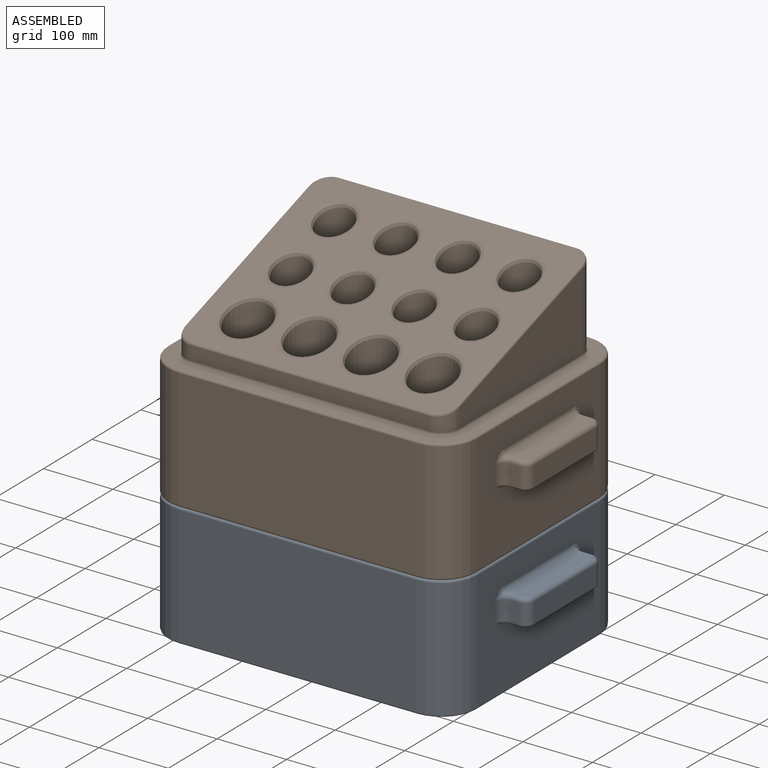
[diagram: assembled view]
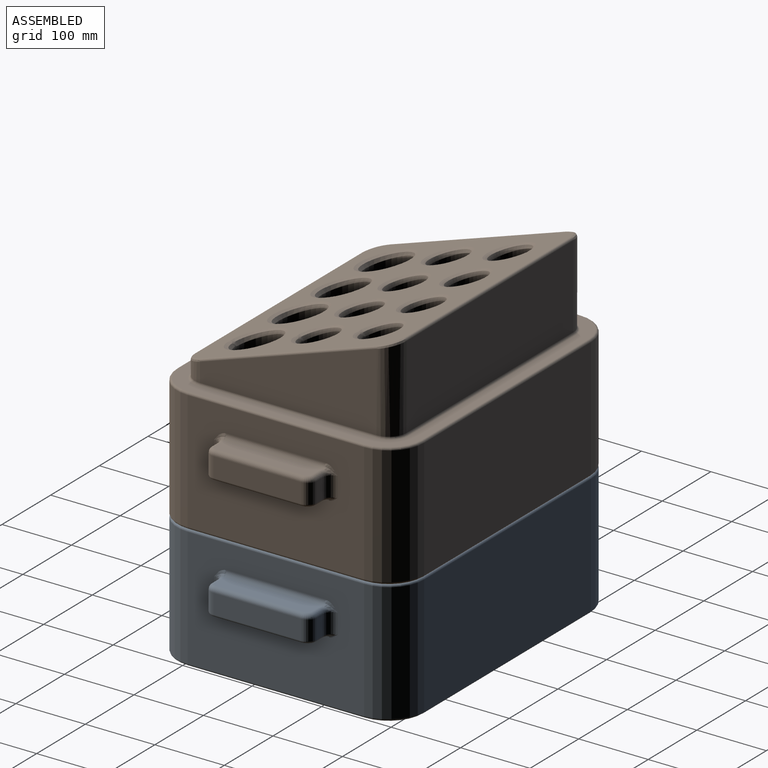
[diagram: assembled view, second angle]
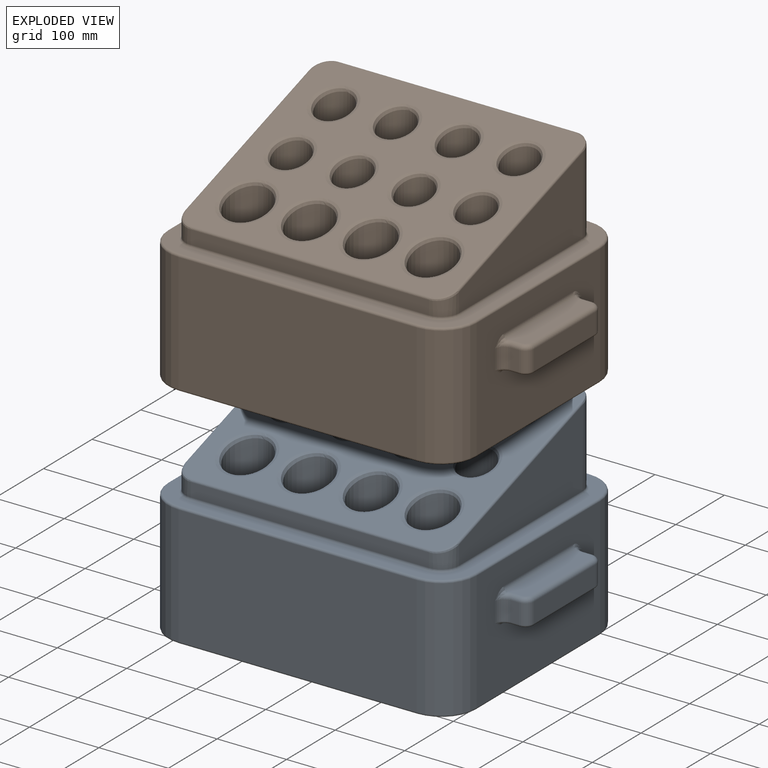
[diagram: exploded view]
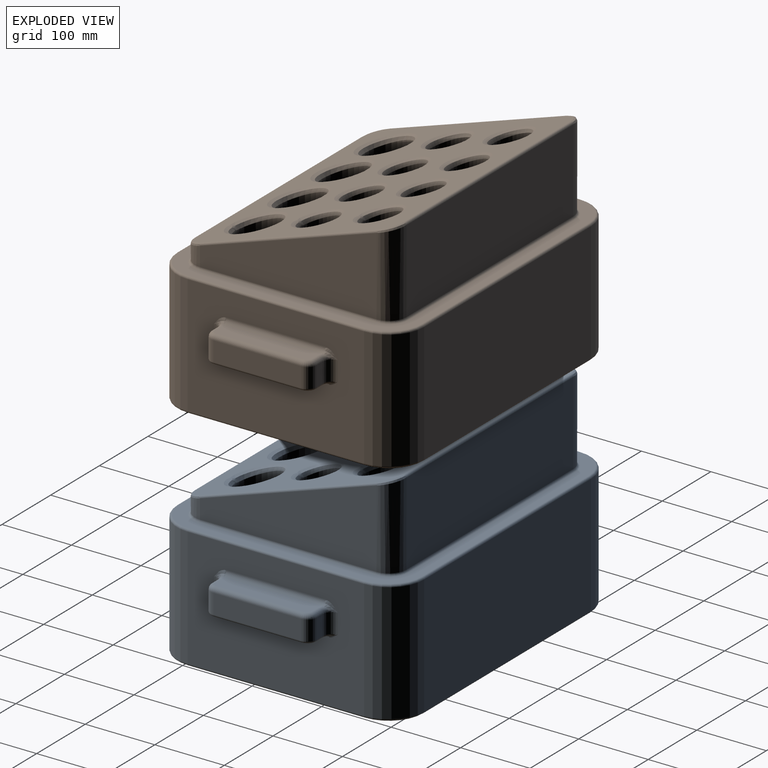
[diagram: exploded view, second angle]
ASSEMBLY  parts=2 mates=3
PART A: 309 faces, bbox 526.6x367.7x307.3 mm
  f0: plane 152.4x31.75mm, normal (0,0,-1), area 1270.4mm2, adj f269,f270,f272,f273,f274,f276,f277,f278
  f1: plane 152.4x31.75mm, normal (0,0,-1), area 1270.4mm2, adj f289,f291,f292,f293,f295,f296,f297,f298
  f2: plane 257.44x174.89mm, normal (1,0,0), area 37860.9mm2, adj f73,f74,f84,f85,f215,f216,f230,f232
  f3: plane 254x138.97mm, normal (1,0,0), area 26612.8mm2, adj f69,f71,f93,f117
  f4: plane 254x138.97mm, normal (-1,0,0), area 26612.9mm2, adj f70,f72,f100,f117
  f5: plane 257.44x174.89mm, normal (-1,0,0), area 37860.9mm2, adj f75,f76,f77,f92,f213,f214,f221,f223
  f6: plane 438.15x349.25mm, normal (0,0,-1), area 22910.2mm2, adj f77,f78,f79,f80,f81,f82,f83,f84
  f7: plane 342.9x171.45mm, normal (0,-1,0), area 58790.2mm2, adj f74,f76,f80,f88
  f8: plane 342.9x19.94mm, normal (0,-1,0), area 6836.3mm2, adj f56,f58,f105,f112
  f9: plane 342.9x119.42mm, normal (0,1,0), area 40949.1mm2, adj f55,f57,f104,f113
  f10: plane 254x112.01mm, normal (-1,0,0), area 17698.3mm2, adj f57,f58,f108,f116
  f11: plane 387.35x298.45mm, normal (0,-0.32,0.95), area 75477mm2, adj f41,f42,f43,f44,f45,f46,f47,f48
  f12: cylinder r=25.4mm len=128.78mm, axis (0,0,1), area 18862.3mm2, adj f33,f49
  f13: cylinder r=25.4mm len=128.78mm, axis (0,0,1), area 18862.3mm2, adj f34,f48
  f14: cylinder r=25.4mm len=128.78mm, axis (0,0,1), area 18862.3mm2, adj f32,f47
  f15: cylinder r=25.4mm len=124.55mm, axis (0,0,1), area 18186.7mm2, adj f36,f46
  f16: cylinder r=25.4mm len=124.55mm, axis (0,0,1), area 18186.7mm2, adj f37,f45
  f17: cylinder r=25.4mm len=124.55mm, axis (0,0,1), area 18186.7mm2, adj f35,f44
  f18: cylinder r=31.75mm len=122.43mm, axis (0,0,1), area 21888.8mm2, adj f39,f43
  f19: cylinder r=31.75mm len=122.43mm, axis (0,0,1), area 21888.8mm2, adj f38,f42
  f20: cylinder r=31.75mm len=122.43mm, axis (0,0,1), area 21888.8mm2, adj f40,f41
  f21: plane 50.8x50.8mm, normal (0,0,1), area 2026.8mm2, adj f40
  f22: plane 50.8x50.8mm, normal (0,0,1), area 2026.8mm2, adj f38
  f23: plane 50.8x50.8mm, normal (0,0,1), area 2026.8mm2, adj f39
  f24: plane 38.1x38.1mm, normal (0,0,1), area 1140.1mm2, adj f35
  f25: plane 38.1x38.1mm, normal (0,0,1), area 1140.1mm2, adj f37
  f26: plane 38.1x38.1mm, normal (0,0,1), area 1140.1mm2, adj f36
  f27: plane 38.1x38.1mm, normal (0,0,1), area 1140.1mm2, adj f32
  f28: plane 38.1x38.1mm, normal (0,0,1), area 1140.1mm2, adj f34
  f29: plane 38.1x38.1mm, normal (0,0,1), area 1140.1mm2, adj f33
  f30: plane 438.15x349.25mm, normal (0,0,1), area 27302.3mm2, adj f85,f86,f87,f88,f89,f90,f91,f92
  f31: plane 342.9x171.45mm, normal (0,1,0), area 58790.2mm2, adj f73,f75,f81,f89
  f32: torus R=19.05mm, axis (0,0,-1), area 1447.3mm2, adj f14,f27
  f33: torus R=19.05mm, axis (0,0,-1), area 1447.3mm2, adj f12,f29
  f34: torus R=19.05mm, axis (0,0,-1), area 1447.3mm2, adj f13,f28
  f35: torus R=19.05mm, axis (0,0,-1), area 1447.3mm2, adj f17,f24
  f36: torus R=19.05mm, axis (0,0,-1), area 1447.3mm2, adj f15,f26
  f37: torus R=19.05mm, axis (0,0,-1), area 1447.3mm2, adj f16,f25
  f38: torus R=25.4mm, axis (0,0,-1), area 1845.2mm2, adj f19,f22
  f39: torus R=25.4mm, axis (0,0,-1), area 1845.2mm2, adj f18,f23
  f40: torus R=25.4mm, axis (0,0,-1), area 1845.2mm2, adj f20,f21
  f41: bspline ~76.2x76.2mm, area 2198.6mm2, adj f11,f20
  f42: bspline ~76.2x76.2mm, area 2198.6mm2, adj f11,f19
  f43: bspline ~76.2x76.2mm, area 2198.6mm2, adj f11,f18
  f44: bspline ~63.47x63.43mm, area 1790mm2, adj f11,f17
  f45: bspline ~63.47x63.43mm, area 1790mm2, adj f11,f16
  f46: bspline ~63.47x63.43mm, area 1790mm2, adj f11,f15
  f47: bspline ~63.47x63.43mm, area 1790mm2, adj f11,f14
  f48: bspline ~63.47x63.43mm, area 1790mm2, adj f11,f13
  f49: bspline ~63.47x63.43mm, area 1790mm2, adj f11,f12
  f50: plane 254x112.01mm, normal (1,0,0), area 17698.3mm2, adj f55,f56,f101,f109
  f51: cylinder r=31.75mm len=122.6mm, axis (0,0,-1), area 21888.8mm2, adj f53,f54
  f52: plane 50.8x50.8mm, normal (0,0,1), area 2026.8mm2, adj f54
  f53: bspline ~76.16x76.12mm, area 2200.5mm2, adj f11,f51
  f54: torus R=25.4mm, axis (0,0,1), area 1845.2mm2, adj f51,f52
  f55: cylinder r=25.4mm len=119.42mm, axis (0,0,1), area 4616.9mm2, adj f9,f50,f102,f111
  f56: cylinder r=25.4mm len=27.35mm, axis (0,0,-1), area 943.2mm2, adj f8,f50,f103,f110
  f57: cylinder r=25.4mm len=119.42mm, axis (0,0,-1), area 4616.9mm2, adj f9,f10,f106,f115
  f58: cylinder r=25.4mm len=27.35mm, axis (0,0,1), area 943.2mm2, adj f8,f10,f107,f114
  f59: cylinder r=25.4mm len=124.68mm, axis (0,0,-1), area 18186.6mm2, adj f61,f62
  f60: plane 38.1x38.1mm, normal (0,0,1), area 1140.1mm2, adj f62
  f61: bspline ~63.47x63.43mm, area 1791.5mm2, adj f11,f59
  f62: torus R=19.05mm, axis (0,0,1), area 1447.3mm2, adj f59,f60
  f63: cylinder r=25.4mm len=128.92mm, axis (0,0,-1), area 18862.2mm2, adj f65,f66
  f64: plane 38.1x38.1mm, normal (0,0,1), area 1140.1mm2, adj f66
  f65: bspline ~63.47x63.43mm, area 1791.5mm2, adj f11,f63
  f66: torus R=19.05mm, axis (0,0,1), area 1447.3mm2, adj f63,f64
  f67: plane 342.9x62.89mm, normal (0,1,0), area 21564.8mm2, adj f71,f72,f97,f117
  f68: plane 342.9x146.66mm, normal (0,-1,0), area 50289.9mm2, adj f69,f70,f96,f117
  f69: cylinder r=28.57mm len=146.66mm, axis (0,0,1), area 6410.3mm2, adj f3,f68,f94,f117
  f70: cylinder r=28.57mm len=146.66mm, axis (0,0,-1), area 6410.3mm2, adj f4,f68,f98,f117
  f71: cylinder r=28.57mm len=70.58mm, axis (0,0,-1), area 2995.5mm2, adj f3,f67,f95,f117
  f72: cylinder r=28.57mm len=70.58mm, axis (0,0,1), area 2995.5mm2, adj f4,f67,f99,f117
  f73: cylinder r=50.8mm len=171.45mm, axis (0,0,1), area 13681.1mm2, adj f2,f31,f83,f87
  f74: cylinder r=50.8mm len=171.45mm, axis (0,0,1), area 13681.1mm2, adj f2,f7,f82,f86
  f75: cylinder r=50.8mm len=171.45mm, axis (0,0,1), area 13681.1mm2, adj f5,f31,f79,f91
  f76: cylinder r=50.8mm len=171.45mm, axis (0,0,1), area 13681.1mm2, adj f5,f7,f78,f90
  f77: cylinder r=3.17mm len=254mm, axis (0,1,0), area 1266.8mm2, adj f5,f6,f78,f79
  f78: torus R=47.62mm, axis (0,0,1), area 388.9mm2, adj f6,f76,f77,f80
  f79: torus R=47.62mm, axis (0,0,1), area 388.9mm2, adj f6,f75,f77,f81
  f80: cylinder r=3.17mm len=342.9mm, axis (-1,0,0), area 1710.1mm2, adj f6,f7,f78,f82
  f81: cylinder r=3.17mm len=342.9mm, axis (-1,0,0), area 1710.1mm2, adj f6,f31,f79,f83
  f82: torus R=47.62mm, axis (0,0,1), area 388.9mm2, adj f6,f74,f80,f84
  f83: torus R=47.62mm, axis (0,0,1), area 388.9mm2, adj f6,f73,f81,f84
  f84: cylinder r=3.17mm len=254mm, axis (0,-1,0), area 1266.8mm2, adj f2,f6,f82,f83
  f85: cylinder r=3.17mm len=254mm, axis (0,1,0), area 1266.8mm2, adj f2,f30,f86,f87
  f86: torus R=47.62mm, axis (0,0,1), area 388.9mm2, adj f30,f74,f85,f88
  f87: torus R=47.62mm, axis (0,0,1), area 388.9mm2, adj f30,f73,f85,f89
  f88: cylinder r=3.17mm len=342.9mm, axis (1,0,0), area 1710.1mm2, adj f7,f30,f86,f90
  f89: cylinder r=3.17mm len=342.9mm, axis (1,0,0), area 1710.1mm2, adj f30,f31,f87,f91
  f90: torus R=47.62mm, axis (0,0,1), area 388.9mm2, adj f30,f76,f88,f92
  f91: torus R=47.62mm, axis (0,0,1), area 388.9mm2, adj f30,f75,f89,f92
  f92: cylinder r=3.17mm len=254mm, axis (0,1,0), area 1266.8mm2, adj f5,f30,f90,f91
  f93: cylinder r=3.17mm len=254mm, axis (0,-1,0), area 1266.8mm2, adj f3,f6,f94,f95
  f94: torus R=31.75mm, axis (0,0,1), area 232.9mm2, adj f6,f69,f93,f96
  f95: torus R=31.75mm, axis (0,0,1), area 232.9mm2, adj f6,f71,f93,f97
  f96: cylinder r=3.17mm len=342.9mm, axis (1,0,0), area 1710.1mm2, adj f6,f68,f94,f98
  f97: cylinder r=3.17mm len=342.9mm, axis (1,0,0), area 1710.1mm2, adj f6,f67,f95,f99
  f98: torus R=31.75mm, axis (0,0,1), area 232.9mm2, adj f6,f70,f96,f100
  f99: torus R=31.75mm, axis (0,0,1), area 232.9mm2, adj f6,f72,f97,f100
  f100: cylinder r=3.17mm len=254mm, axis (0,-1,0), area 1266.8mm2, adj f4,f6,f98,f99
  f101: cylinder r=3.17mm len=255mm, axis (0,0.95,0.32), area 1335.3mm2, adj f11,f50,f102,f103
  f102: bspline ~26.4x25.4mm, area 220.9mm2, adj f11,f55,f101,f104
  f103: bspline ~29.81x25.44mm, area 168.5mm2, adj f11,f56,f101,f105
  f104: cylinder r=3.17mm len=342.9mm, axis (1,0,0), area 2060.4mm2, adj f9,f11,f102,f106
  f105: cylinder r=3.17mm len=342.9mm, axis (1,0,0), area 1359.8mm2, adj f8,f11,f103,f107
  f106: bspline ~26.4x25.4mm, area 220.9mm2, adj f11,f57,f104,f108
  f107: bspline ~29.85x29.81mm, area 168.5mm2, adj f11,f58,f105,f108
  f108: cylinder r=3.17mm len=255mm, axis (0,0.95,0.32), area 1335.3mm2, adj f10,f11,f106,f107
  f109: cylinder r=3.17mm len=254mm, axis (0,1,0), area 1266.8mm2, adj f30,f50,f110,f111
  f110: torus R=28.57mm, axis (0,0,1), area 208mm2, adj f30,f56,f109,f112
  f111: torus R=28.57mm, axis (0,0,1), area 208mm2, adj f30,f55,f109,f113
  f112: cylinder r=3.17mm len=342.9mm, axis (1,0,0), area 1710.1mm2, adj f8,f30,f110,f114
  f113: cylinder r=3.17mm len=342.9mm, axis (-1,0,0), area 1710.1mm2, adj f9,f30,f111,f115
  f114: torus R=28.57mm, axis (0,0,1), area 208mm2, adj f30,f58,f112,f116
  f115: torus R=28.57mm, axis (0,0,1), area 208mm2, adj f30,f57,f113,f116
  f116: cylinder r=3.17mm len=254mm, axis (0,-1,0), area 1266.8mm2, adj f10,f30,f114,f115
  f117: plane 413.35x324.45mm, normal (0,-0.26,0.97), area 6847.2mm2, adj f3,f4,f67,f68,f69,f70,f71,f72
  f118: plane 254x137.38mm, normal (-1,0,0), area 26209.6mm2, adj f117,f121,f185,f187
  f119: plane 254x137.38mm, normal (1,0,0), area 26209.6mm2, adj f117,f121,f186,f188
  f120: plane 254x168.28mm, normal (1,0,0), area 42741.8mm2, adj f121,f145,f191,f192
  f121: plane 434.98x346.08mm, normal (0,0,1), area 18328.2mm2, adj f118,f119,f120,f122,f146,f165,f183,f184
  f122: plane 342.9x168.28mm, normal (0,1,0), area 57701.5mm2, adj f121,f145,f190,f192
  f123: plane 342.9x18.79mm, normal (0,1,0), area 6443.9mm2, adj f126,f172,f174,f196
  f124: plane 342.9x117.22mm, normal (0,-1,0), area 40193.8mm2, adj f126,f171,f173,f197
  f125: plane 254x110.34mm, normal (1,0,0), area 17273.2mm2, adj f126,f173,f174,f200
  f126: plane 387.07x298.17mm, normal (0,0.32,-0.95), area 73254mm2, adj f123,f124,f125,f156,f157,f158,f159,f160
  f127: cylinder r=30.16mm len=128.78mm, axis (0,0,1), area 22330.4mm2, adj f148,f164
  f128: cylinder r=30.16mm len=128.78mm, axis (0,0,1), area 22330.4mm2, adj f149,f163
  f129: cylinder r=30.16mm len=128.78mm, axis (0,0,1), area 22330.4mm2, adj f147,f162
  f130: cylinder r=30.16mm len=124.54mm, axis (0,0,1), area 21528.2mm2, adj f151,f161
  f131: cylinder r=30.16mm len=124.54mm, axis (0,0,1), area 21528.2mm2, adj f152,f160
  f132: cylinder r=30.16mm len=124.54mm, axis (0,0,1), area 21528.2mm2, adj f150,f159
  f133: cylinder r=36.51mm len=122.43mm, axis (0,0,1), area 25072.6mm2, adj f154,f158
  f134: cylinder r=36.51mm len=122.43mm, axis (0,0,1), area 25072.6mm2, adj f153,f157
  f135: cylinder r=36.51mm len=122.43mm, axis (0,0,1), area 25072.6mm2, adj f155,f156
  f136: plane 50.8x50.8mm, normal (0,0,-1), area 2026.8mm2, adj f155
  f137: plane 50.8x50.8mm, normal (0,0,-1), area 2026.8mm2, adj f153
  f138: plane 50.8x50.8mm, normal (0,0,-1), area 2026.8mm2, adj f154
  f139: plane 38.1x38.1mm, normal (0,0,-1), area 1140.1mm2, adj f150
  f140: plane 38.1x38.1mm, normal (0,0,-1), area 1140.1mm2, adj f152
  f141: plane 38.1x38.1mm, normal (0,0,-1), area 1140.1mm2, adj f151
  f142: plane 38.1x38.1mm, normal (0,0,-1), area 1140.1mm2, adj f147
  f143: plane 38.1x38.1mm, normal (0,0,-1), area 1140.1mm2, adj f149
  f144: plane 38.1x38.1mm, normal (0,0,-1), area 1140.1mm2, adj f148
  f145: plane 434.98x346.08mm, normal (0,0,-1), area 24940mm2, adj f120,f122,f146,f165,f189,f190,f191,f192
  f146: plane 342.9x168.28mm, normal (0,-1,0), area 57701.5mm2, adj f121,f145,f189,f191
  f147: torus R=19.05mm, axis (0,0,-1), area 2865.2mm2, adj f129,f142
  f148: torus R=19.05mm, axis (0,0,-1), area 2865.2mm2, adj f127,f144
  f149: torus R=19.05mm, axis (0,0,-1), area 2865.2mm2, adj f128,f143
  f150: torus R=19.05mm, axis (0,0,-1), area 2865.2mm2, adj f132,f139
  f151: torus R=19.05mm, axis (0,0,-1), area 2865.2mm2, adj f130,f141
  f152: torus R=19.05mm, axis (0,0,-1), area 2865.2mm2, adj f131,f140
  f153: torus R=25.4mm, axis (0,0,-1), area 3561.7mm2, adj f134,f137
  f154: torus R=25.4mm, axis (0,0,-1), area 3561.7mm2, adj f133,f138
  f155: torus R=25.4mm, axis (0,0,-1), area 3561.7mm2, adj f135,f136
  f156: bspline ~76.2x76.2mm, area 597.1mm2, adj f126,f135
  f157: bspline ~76.2x76.2mm, area 597.1mm2, adj f126,f134
  f158: bspline ~76.2x76.2mm, area 597.1mm2, adj f126,f133
  f159: bspline ~63.47x63.43mm, area 495mm2, adj f126,f132
  f160: bspline ~63.47x63.43mm, area 495mm2, adj f126,f131
  f161: bspline ~63.47x63.43mm, area 495mm2, adj f126,f130
  f162: bspline ~63.47x63.43mm, area 495mm2, adj f126,f129
  f163: bspline ~63.47x63.43mm, area 495mm2, adj f126,f128
  f164: bspline ~63.47x63.43mm, area 495mm2, adj f126,f127
  f165: plane 254x168.28mm, normal (-1,0,0), area 42741.9mm2, adj f121,f145,f189,f190
  f166: plane 254x110.34mm, normal (-1,0,0), area 17273.2mm2, adj f126,f171,f172,f193
  f167: cylinder r=36.51mm len=122.49mm, axis (0,0,-1), area 25271.6mm2, adj f169,f170
  f168: plane 50.8x50.8mm, normal (0,0,-1), area 2026.8mm2, adj f170
  f169: bspline ~76.2x76.2mm, area 597.6mm2, adj f126,f167
  f170: torus R=25.4mm, axis (0,0,1), area 3561.7mm2, adj f167,f168
  f171: cylinder r=20.64mm len=117.22mm, axis (0,0,1), area 3688.4mm2, adj f124,f126,f166,f195
  f172: cylinder r=20.64mm len=25.67mm, axis (0,0,-1), area 720.7mm2, adj f123,f126,f166,f194
  f173: cylinder r=20.64mm len=117.22mm, axis (0,0,-1), area 3688.4mm2, adj f124,f125,f126,f199
  f174: cylinder r=20.64mm len=25.67mm, axis (0,0,1), area 720.7mm2, adj f123,f125,f126,f198
  f175: cylinder r=30.16mm len=124.59mm, axis (0,0,-1), area 21665.2mm2, adj f177,f178
  f176: plane 38.1x38.1mm, normal (0,0,-1), area 1140.1mm2, adj f178
  f177: bspline ~63.47x63.43mm, area 495.4mm2, adj f126,f175
  f178: torus R=19.05mm, axis (0,0,1), area 2865.2mm2, adj f175,f176
  f179: cylinder r=30.16mm len=128.83mm, axis (0,0,-1), area 22467.4mm2, adj f181,f182
  f180: plane 38.1x38.1mm, normal (0,0,-1), area 1140.1mm2, adj f182
  f181: bspline ~63.47x63.43mm, area 495.4mm2, adj f126,f179
  f182: torus R=19.05mm, axis (0,0,1), area 2865.2mm2, adj f179,f180
  f183: plane 342.9x60.02mm, normal (0,-1,0), area 20580.8mm2, adj f117,f121,f187,f188
  f184: plane 342.9x146.36mm, normal (0,1,0), area 50185.2mm2, adj f117,f121,f185,f186
  f185: cylinder r=33.34mm len=146.36mm, axis (0,0,1), area 7429.1mm2, adj f117,f118,f121,f184
  f186: cylinder r=33.34mm len=146.36mm, axis (0,0,-1), area 7429.1mm2, adj f117,f119,f121,f184
  f187: cylinder r=33.34mm len=69mm, axis (0,0,-1), area 3378mm2, adj f117,f118,f121,f183
  f188: cylinder r=33.34mm len=69mm, axis (0,0,1), area 3378mm2, adj f117,f119,f121,f183
  f189: cylinder r=46.04mm len=168.28mm, axis (0,0,1), area 12168.9mm2, adj f121,f145,f146,f165
  f190: cylinder r=46.04mm len=168.28mm, axis (0,0,1), area 12168.9mm2, adj f121,f122,f145,f165
  f191: cylinder r=46.04mm len=168.28mm, axis (0,0,1), area 12168.9mm2, adj f120,f121,f145,f146
  f192: cylinder r=46.04mm len=168.28mm, axis (0,0,1), area 12168.9mm2, adj f120,f121,f122,f145
  f193: cylinder r=7.94mm len=254mm, axis (0,1,0), area 3166.9mm2, adj f145,f166,f194,f195
  f194: torus R=28.57mm, axis (0,0,1), area 460.7mm2, adj f145,f172,f193,f196
  f195: torus R=28.57mm, axis (0,0,1), area 460.7mm2, adj f145,f171,f193,f197
  f196: cylinder r=7.94mm len=342.9mm, axis (1,0,0), area 4275.3mm2, adj f123,f145,f194,f198
  f197: cylinder r=7.94mm len=342.9mm, axis (-1,0,0), area 4275.3mm2, adj f124,f145,f195,f199
  f198: torus R=28.57mm, axis (0,0,1), area 460.7mm2, adj f145,f174,f196,f200
  f199: torus R=28.57mm, axis (0,0,1), area 460.7mm2, adj f145,f173,f197,f200
  f200: cylinder r=7.94mm len=254mm, axis (0,-1,0), area 3166.9mm2, adj f125,f145,f198,f199
  f201: plane 28.58x12.7mm, normal (0,1,0), area 362.9mm2, adj f211,f215,f227,f270
  f202: plane 141.88x25.4mm, normal (0,0,1), area 3535.6mm2, adj f227,f228,f229,f231,f232,f233,f235,f236
  f203: plane 28.58x12.7mm, normal (0,-1,0), area 362.9mm2, adj f212,f216,f235,f278
  f204: plane 127x28.58mm, normal (1,0,0), area 3629mm2, adj f211,f212,f231,f274
  f205: plane 28.58x12.7mm, normal (0,1,0), area 362.9mm2, adj f210,f214,f217,f291
  f206: plane 28.58x12.7mm, normal (0,-1,0), area 362.9mm2, adj f209,f213,f224,f299
  f207: plane 141.88x25.4mm, normal (0,0,1), area 3535.6mm2, adj f217,f218,f219,f220,f222,f223,f224,f226
  f208: plane 127x28.58mm, normal (-1,0,0), area 3629mm2, adj f209,f210,f220,f295
  f209: cylinder r=12.7mm len=28.58mm, axis (0,0,-1), area 570mm2, adj f206,f208,f222,f297
  f210: cylinder r=12.7mm len=28.58mm, axis (0,0,1), area 570mm2, adj f205,f208,f218,f293
  f211: cylinder r=12.7mm len=28.58mm, axis (0,0,-1), area 570mm2, adj f201,f204,f229,f272
  f212: cylinder r=12.7mm len=28.58mm, axis (0,0,1), area 570mm2, adj f203,f204,f233,f276
  f213: cylinder r=12.7mm len=28.58mm, axis (0,0,1), area 570mm2, adj f5,f206,f226,f301
  f214: cylinder r=12.7mm len=28.58mm, axis (0,0,-1), area 570mm2, adj f5,f205,f219,f289
  f215: cylinder r=12.7mm len=28.58mm, axis (0,0,1), area 570mm2, adj f2,f201,f228,f269
  f216: cylinder r=12.7mm len=28.58mm, axis (0,0,-1), area 570mm2, adj f2,f203,f236,f280
  f217: cylinder r=6.35mm len=12.7mm, axis (-1,0,0), area 126.7mm2, adj f205,f207,f218,f219
  f218: torus R=6.35mm, axis (0,0,-1), area 162.8mm2, adj f207,f210,f217,f220
  f219: torus R=19.05mm, axis (0,0,-1), area 110.2mm2, adj f207,f214,f217,f221
  f220: cylinder r=6.35mm len=127mm, axis (0,-1,0), area 1266.8mm2, adj f207,f208,f218,f222
  f221: bspline ~21.17x12.7mm, area 116.4mm2, adj f5,f219,f223
  f222: torus R=6.35mm, axis (0,0,-1), area 162.8mm2, adj f207,f209,f220,f224
  f223: cylinder r=6.35mm len=141.88mm, axis (0,1,0), area 1415.2mm2, adj f5,f207,f221,f225
  f224: cylinder r=6.35mm len=12.7mm, axis (1,0,0), area 126.7mm2, adj f206,f207,f222,f226
  f225: bspline ~21.17x12.7mm, area 116.4mm2, adj f5,f223,f226
  f226: torus R=19.05mm, axis (0,0,-1), area 110.2mm2, adj f207,f213,f224,f225
  f227: cylinder r=6.35mm len=12.7mm, axis (1,0,0), area 126.7mm2, adj f201,f202,f228,f229
  f228: torus R=19.05mm, axis (0,0,1), area 110.2mm2, adj f202,f215,f227,f230
  f229: torus R=6.35mm, axis (0,0,1), area 162.8mm2, adj f202,f211,f227,f231
  f230: bspline ~21.17x12.7mm, area 116.4mm2, adj f2,f228,f232
  f231: cylinder r=6.35mm len=127mm, axis (0,1,0), area 1266.8mm2, adj f202,f204,f229,f233
  f232: cylinder r=6.35mm len=141.88mm, axis (0,-1,0), area 1415.2mm2, adj f2,f202,f230,f234
  f233: torus R=6.35mm, axis (0,0,1), area 162.8mm2, adj f202,f212,f231,f235
  f234: bspline ~21.17x12.7mm, area 116.4mm2, adj f2,f232,f236
  f235: cylinder r=6.35mm len=12.7mm, axis (-1,0,0), area 126.7mm2, adj f202,f203,f233,f236
  f236: torus R=19.05mm, axis (0,0,1), area 110.2mm2, adj f202,f216,f234,f235
  f237: plane 15.88x12.7mm, normal (0,1,0), area 201.6mm2, adj f245,f246,f264,f306
  f238: plane 114.3x15.88mm, normal (1,0,0), area 1814.5mm2, adj f246,f247,f268,f302
  f239: plane 15.88x12.7mm, normal (0,-1,0), area 201.6mm2, adj f247,f248,f265,f298
  f240: plane 114.3x12.7mm, normal (0,0,-1), area 1451.6mm2, adj f261,f264,f265,f268
  f241: plane 114.3x15.88mm, normal (-1,0,0), area 1814.5mm2, adj f249,f252,f260,f283
  f242: plane 15.88x12.7mm, normal (0,1,0), area 201.6mm2, adj f249,f250,f256,f287
  f243: plane 15.88x12.7mm, normal (0,-1,0), area 201.6mm2, adj f251,f252,f257,f279
  f244: plane 114.3x12.7mm, normal (0,0,-1), area 1451.6mm2, adj f253,f256,f257,f260
  f245: cylinder r=6.35mm len=15.88mm, axis (0,0,1), area 158.3mm2, adj f5,f237,f262,f308
  f246: cylinder r=6.35mm len=15.88mm, axis (0,0,-1), area 158.3mm2, adj f237,f238,f266,f304
  f247: cylinder r=6.35mm len=15.88mm, axis (0,0,1), area 158.3mm2, adj f238,f239,f267,f300
  f248: cylinder r=6.35mm len=15.88mm, axis (0,0,-1), area 158.3mm2, adj f5,f239,f263,f296
  f249: cylinder r=6.35mm len=15.88mm, axis (0,0,-1), area 158.3mm2, adj f241,f242,f258,f285
  f250: cylinder r=6.35mm len=15.88mm, axis (0,0,-1), area 158.3mm2, adj f2,f242,f254,f288
  f251: cylinder r=6.35mm len=15.88mm, axis (0,0,1), area 158.3mm2, adj f2,f243,f255,f277
  f252: cylinder r=6.35mm len=15.88mm, axis (0,0,1), area 158.3mm2, adj f241,f243,f259,f281
  f253: cylinder r=6.35mm len=114.3mm, axis (0,-1,0), area 1140.1mm2, adj f2,f244,f254,f255
  f254: sphere r=6.35mm, area 63.3mm2, adj f250,f253,f256
  f255: sphere r=6.35mm, area 63.3mm2, adj f251,f253,f257
  f256: cylinder r=6.35mm len=12.7mm, axis (-1,0,0), area 126.7mm2, adj f242,f244,f254,f258
  f257: cylinder r=6.35mm len=12.7mm, axis (1,0,0), area 126.7mm2, adj f243,f244,f255,f259
  f258: sphere r=6.35mm, area 63.3mm2, adj f249,f256,f260
  f259: sphere r=6.35mm, area 63.3mm2, adj f252,f257,f260
  f260: cylinder r=6.35mm len=114.3mm, axis (0,-1,0), area 1140.1mm2, adj f241,f244,f258,f259
  f261: cylinder r=6.35mm len=114.3mm, axis (0,-1,0), area 1140.1mm2, adj f5,f240,f262,f263
  f262: sphere r=6.35mm, area 63.3mm2, adj f245,f261,f264
  f263: sphere r=6.35mm, area 63.3mm2, adj f248,f261,f265
  f264: cylinder r=6.35mm len=12.7mm, axis (-1,0,0), area 126.7mm2, adj f237,f240,f262,f266
  f265: cylinder r=6.35mm len=12.7mm, axis (1,0,0), area 126.7mm2, adj f239,f240,f263,f267
  f266: sphere r=6.35mm, area 63.3mm2, adj f246,f264,f268
  f267: sphere r=6.35mm, area 63.3mm2, adj f247,f265,f268
  f268: cylinder r=6.35mm len=114.3mm, axis (0,1,0), area 1140.1mm2, adj f238,f240,f266,f267
  f269: torus R=15.88mm, axis (0,0,1), area 75.2mm2, adj f0,f215,f270,f271
  f270: cylinder r=3.17mm len=12.7mm, axis (-1,0,0), area 63.3mm2, adj f0,f201,f269,f272
  f271: bspline ~14.84x6.35mm, area 23mm2, adj f2,f269,f273
  f272: torus R=9.53mm, axis (0,0,1), area 90.5mm2, adj f0,f211,f270,f274
  f273: cylinder r=3.17mm len=10.07mm, axis (0,1,0), area 50.2mm2, adj f0,f2,f271,f275
  f274: cylinder r=3.17mm len=127mm, axis (0,-1,0), area 633.4mm2, adj f0,f204,f272,f276
  f275: bspline ~8.98x6.35mm, area 18.7mm2, adj f2,f273,f277
  f276: torus R=9.53mm, axis (0,0,1), area 90.5mm2, adj f0,f212,f274,f278
  f277: torus R=9.53mm, axis (0,0,1), area 27.6mm2, adj f0,f251,f275,f279
  f278: cylinder r=3.17mm len=12.7mm, axis (1,0,0), area 63.3mm2, adj f0,f203,f276,f280
  f279: cylinder r=3.17mm len=12.7mm, axis (1,0,0), area 63.3mm2, adj f0,f243,f277,f281
  f280: torus R=15.88mm, axis (0,0,1), area 75.2mm2, adj f0,f216,f278,f282
  f281: torus R=9.53mm, axis (0,0,1), area 58.8mm2, adj f0,f252,f279,f283
  f282: bspline ~13.25x6.35mm, area 23mm2, adj f2,f280,f284
  f283: cylinder r=3.17mm len=114.3mm, axis (0,-1,0), area 570mm2, adj f0,f241,f281,f285
  f284: cylinder r=3.17mm len=10.07mm, axis (0,1,0), area 50.2mm2, adj f0,f2,f282,f286
  f285: torus R=9.53mm, axis (0,0,1), area 58.8mm2, adj f0,f249,f283,f287
  f286: bspline ~8.98x6.35mm, area 16.9mm2, adj f2,f284,f288
  f287: cylinder r=3.17mm len=12.7mm, axis (-1,0,0), area 63.3mm2, adj f0,f242,f285,f288
  f288: torus R=9.53mm, axis (0,0,1), area 27.6mm2, adj f0,f250,f286,f287
  f289: torus R=15.88mm, axis (0,0,-1), area 75.2mm2, adj f1,f214,f290,f291
  f290: bspline ~14.84x6.35mm, area 23mm2, adj f5,f289,f292
  f291: cylinder r=3.17mm len=12.7mm, axis (1,0,0), area 63.3mm2, adj f1,f205,f289,f293
  f292: cylinder r=3.17mm len=10.07mm, axis (0,-1,0), area 50.2mm2, adj f1,f5,f290,f294
  f293: torus R=9.53mm, axis (0,0,-1), area 90.5mm2, adj f1,f210,f291,f295
  f294: bspline ~10.59x6.35mm, area 16.9mm2, adj f5,f292,f296
  f295: cylinder r=3.17mm len=127mm, axis (0,1,0), area 633.4mm2, adj f1,f208,f293,f297
  f296: torus R=9.53mm, axis (0,0,-1), area 27.6mm2, adj f1,f248,f294,f298
  f297: torus R=9.53mm, axis (0,0,-1), area 90.5mm2, adj f1,f209,f295,f299
  f298: cylinder r=3.17mm len=12.7mm, axis (-1,0,0), area 63.3mm2, adj f1,f239,f296,f300
  f299: cylinder r=3.17mm len=12.7mm, axis (-1,0,0), area 63.3mm2, adj f1,f206,f297,f301
  f300: torus R=9.53mm, axis (0,0,-1), area 58.8mm2, adj f1,f247,f298,f302
  f301: torus R=15.88mm, axis (0,0,-1), area 75.2mm2, adj f1,f213,f299,f303
  f302: cylinder r=3.17mm len=114.3mm, axis (0,-1,0), area 570mm2, adj f1,f238,f300,f304
  f303: bspline ~14.84x6.35mm, area 23mm2, adj f5,f301,f305
  f304: torus R=9.53mm, axis (0,0,-1), area 58.8mm2, adj f1,f246,f302,f306
  f305: cylinder r=3.17mm len=10.07mm, axis (0,-1,0), area 50.2mm2, adj f1,f5,f303,f307
  f306: cylinder r=3.17mm len=12.7mm, axis (1,0,0), area 63.3mm2, adj f1,f237,f304,f308
  f307: bspline ~8.98x6.35mm, area 18.7mm2, adj f5,f305,f308
  f308: torus R=9.53mm, axis (0,0,-1), area 27.6mm2, adj f1,f245,f306,f307
PART B: same geometry as A
PLACE A at identity fixed
PLACE B t=(0,0,177.8)mm
MATE planar B.f55 <-> A.f55  axis (0,0,-1) through (368.3,-25.4,177.8)mm
MATE planar B.f2 <-> A.f2  axis (1,0,0) through (419.1,-152.4,261.82)mm
MATE planar B.f7 <-> A.f7  axis (0,-1,0) through (196.85,-330.2,266.7)mm
